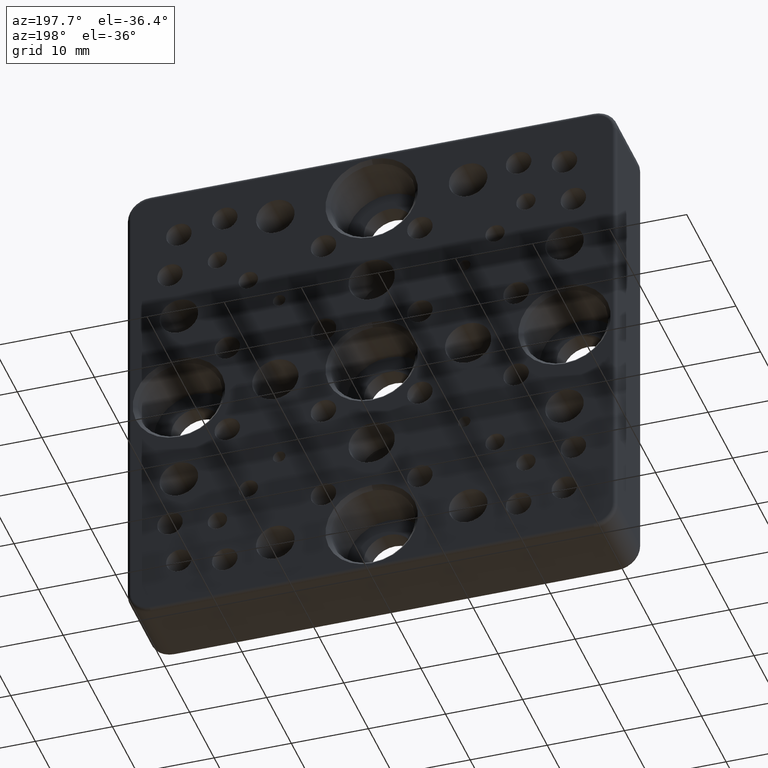
[diagram: clean part render]
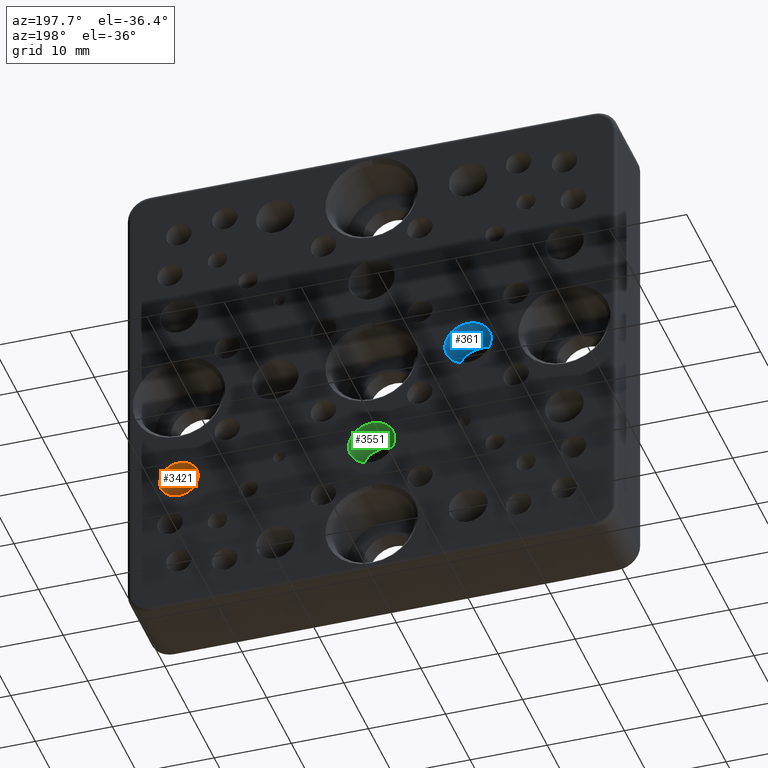
[diagram: same view with three faces highlighted in distinct colors, each labeled with its STEP entity id]
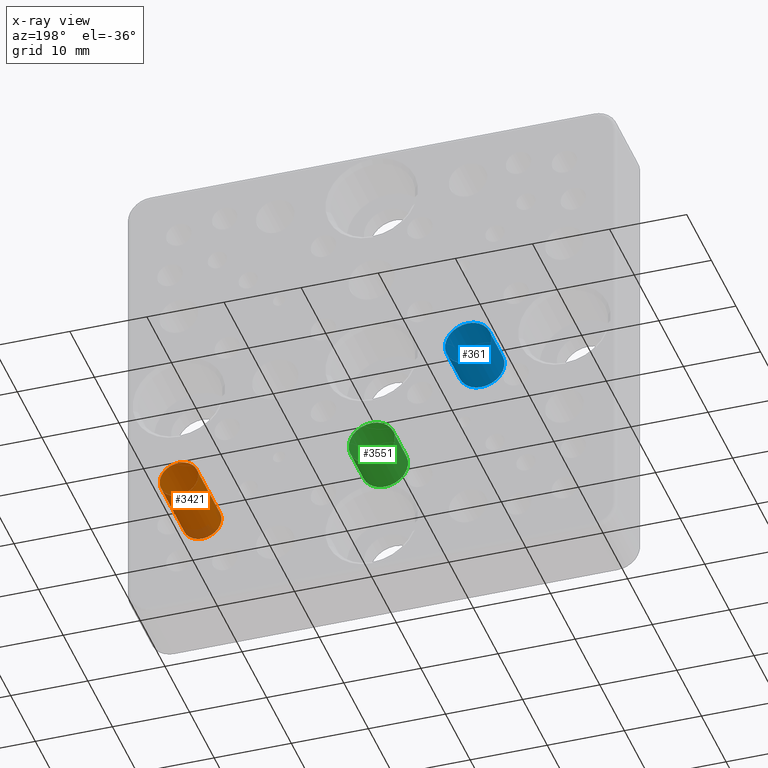
[diagram: x-ray of the same camera — body ghosted, the three highlighted faces saturated]
A machine part, auxiliary view with three faces highlighted in distinct colors.
The next image is the same camera in x-ray (body ghosted, the three faces saturated) — at least one of them is partly hidden behind the body in this view.
Their STEP definitions:

[orange] entity #3421 — the highlighted cylindrical surface (bore or boss wall) has radius 2.5 mm, axis along (-0, -1, -0).
#197 = CYLINDRICAL_SURFACE ( 'NONE', #1111, 2.499999999999998668 ) ;
#205 = CARTESIAN_POINT ( 'NONE',  ( 24.99999999999999645, 0.5250000000000006883, -12.50000000000000000 ) ) ;
#247 = VERTEX_POINT ( 'NONE', #1483 ) ;
#461 = CARTESIAN_POINT ( 'NONE',  ( 24.99999999999999645, 0.000000000000000000, -12.50000000000000000 ) ) ;
#566 = VERTEX_POINT ( 'NONE', #846 ) ;
#588 = EDGE_CURVE ( 'NONE', #566, #566, #3853, .T. ) ;
#791 = EDGE_CURVE ( 'NONE', #247, #247, #2650, .T. ) ;
#846 = CARTESIAN_POINT ( 'NONE',  ( 24.99999999999999645, 0.5250000000000006883, -15.00000000000000000 ) ) ;
#986 = DIRECTION ( 'NONE',  ( 0.000000000000000000, 0.000000000000000000, -1.000000000000000000 ) ) ;
#1111 = AXIS2_PLACEMENT_3D ( 'NONE', #461, #1669, #3256 ) ;
#1296 = ORIENTED_EDGE ( 'NONE', *, *, #791, .F. ) ;
#1389 = EDGE_LOOP ( 'NONE', ( #1296 ) ) ;
#1483 = CARTESIAN_POINT ( 'NONE',  ( 24.99999999999999645, 10.00000000000000178, -15.00000000000000000 ) ) ;
#1669 = DIRECTION ( 'NONE',  ( -0.000000000000000000, -1.000000000000000000, -0.000000000000000000 ) ) ;
#2144 = AXIS2_PLACEMENT_3D ( 'NONE', #205, #2686, #2376 ) ;
#2251 = AXIS2_PLACEMENT_3D ( 'NONE', #3548, #3784, #986 ) ;
#2376 = DIRECTION ( 'NONE',  ( 0.000000000000000000, 0.000000000000000000, -1.000000000000000000 ) ) ;
#2549 = ORIENTED_EDGE ( 'NONE', *, *, #588, .T. ) ;
#2614 = FACE_OUTER_BOUND ( 'NONE', #3712, .T. ) ;
#2650 = CIRCLE ( 'NONE', #2251, 2.499999999999998668 ) ;
#2686 = DIRECTION ( 'NONE',  ( -0.000000000000000000, -1.000000000000000000, -0.000000000000000000 ) ) ;
#3009 = FACE_OUTER_BOUND ( 'NONE', #1389, .T. ) ;
#3256 = DIRECTION ( 'NONE',  ( 0.000000000000000000, 0.000000000000000000, -1.000000000000000000 ) ) ;
#3421 = ADVANCED_FACE ( 'NONE', ( #3009, #2614 ), #197, .F. ) ;
#3548 = CARTESIAN_POINT ( 'NONE',  ( 24.99999999999999645, 10.00000000000000178, -12.50000000000000000 ) ) ;
#3712 = EDGE_LOOP ( 'NONE', ( #2549 ) ) ;
#3784 = DIRECTION ( 'NONE',  ( -0.000000000000000000, -1.000000000000000000, -0.000000000000000000 ) ) ;
#3853 = CIRCLE ( 'NONE', #2144, 2.499999999999998668 ) ;

[blue] entity #361 — the highlighted cylindrical surface (bore or boss wall) has radius 3 mm, axis along (-0, -1, -0).
#101 = EDGE_CURVE ( 'NONE', #2031, #2031, #331, .T. ) ;
#331 = CIRCLE ( 'NONE', #2605, 3.000000000000012879 ) ;
#361 = ADVANCED_FACE ( 'NONE', ( #3554, #2604 ), #3165, .F. ) ;
#803 = ORIENTED_EDGE ( 'NONE', *, *, #101, .T. ) ;
#841 = CARTESIAN_POINT ( 'NONE',  ( -12.50000000000000000, 10.00000000000000000, -3.000000000000012879 ) ) ;
#845 = DIRECTION ( 'NONE',  ( -0.000000000000000000, -1.000000000000000000, -0.000000000000000000 ) ) ;
#850 = AXIS2_PLACEMENT_3D ( 'NONE', #2396, #845, #2083 ) ;
#969 = DIRECTION ( 'NONE',  ( 0.000000000000000000, 0.000000000000000000, -1.000000000000000000 ) ) ;
#1446 = VERTEX_POINT ( 'NONE', #841 ) ;
#1537 = DIRECTION ( 'NONE',  ( -0.000000000000000000, -1.000000000000000000, -0.000000000000000000 ) ) ;
#1849 = CARTESIAN_POINT ( 'NONE',  ( -12.50000000000000000, 4.599999999999999645, 0.000000000000000000 ) ) ;
#1888 = DIRECTION ( 'NONE',  ( 0.000000000000000000, 0.000000000000000000, -1.000000000000000000 ) ) ;
#1962 = EDGE_LOOP ( 'NONE', ( #2092 ) ) ;
#2031 = VERTEX_POINT ( 'NONE', #2338 ) ;
#2083 = DIRECTION ( 'NONE',  ( 0.000000000000000000, 0.000000000000000000, -1.000000000000000000 ) ) ;
#2092 = ORIENTED_EDGE ( 'NONE', *, *, #2711, .F. ) ;
#2338 = CARTESIAN_POINT ( 'NONE',  ( -12.50000000000000000, 4.599999999999999645, -3.000000000000012879 ) ) ;
#2396 = CARTESIAN_POINT ( 'NONE',  ( -12.50000000000000000, 10.00000000000000000, 0.000000000000000000 ) ) ;
#2604 = FACE_OUTER_BOUND ( 'NONE', #3585, .T. ) ;
#2605 = AXIS2_PLACEMENT_3D ( 'NONE', #1849, #1537, #1888 ) ;
#2711 = EDGE_CURVE ( 'NONE', #1446, #1446, #3331, .T. ) ;
#3165 = CYLINDRICAL_SURFACE ( 'NONE', #3557, 3.000000000000012879 ) ;
#3331 = CIRCLE ( 'NONE', #850, 3.000000000000012879 ) ;
#3466 = DIRECTION ( 'NONE',  ( -0.000000000000000000, -1.000000000000000000, -0.000000000000000000 ) ) ;
#3554 = FACE_OUTER_BOUND ( 'NONE', #1962, .T. ) ;
#3557 = AXIS2_PLACEMENT_3D ( 'NONE', #3855, #3466, #969 ) ;
#3585 = EDGE_LOOP ( 'NONE', ( #803 ) ) ;
#3855 = CARTESIAN_POINT ( 'NONE',  ( -12.50000000000000000, 0.000000000000000000, 0.000000000000000000 ) ) ;

[green] entity #3551 — the highlighted cylindrical surface (bore or boss wall) has radius 3 mm, axis along (-0, -1, -0).
#76 = EDGE_CURVE ( 'NONE', #3898, #3898, #139, .T. ) ;
#139 = CIRCLE ( 'NONE', #2013, 3.000000000000012879 ) ;
#434 = ORIENTED_EDGE ( 'NONE', *, *, #996, .F. ) ;
#500 = FACE_OUTER_BOUND ( 'NONE', #3127, .T. ) ;
#606 = DIRECTION ( 'NONE',  ( 0.000000000000000000, 0.000000000000000000, -1.000000000000000000 ) ) ;
#870 = ORIENTED_EDGE ( 'NONE', *, *, #76, .T. ) ;
#996 = EDGE_CURVE ( 'NONE', #1312, #1312, #2721, .T. ) ;
#1088 = CARTESIAN_POINT ( 'NONE',  ( 3.469446951953614189E-15, 4.599999999999999645, -15.50000000000001421 ) ) ;
#1312 = VERTEX_POINT ( 'NONE', #2476 ) ;
#1417 = CARTESIAN_POINT ( 'NONE',  ( 3.469446951953614189E-15, 0.000000000000000000, -12.50000000000000000 ) ) ;
#1498 = CARTESIAN_POINT ( 'NONE',  ( 3.469446951953614189E-15, 4.599999999999999645, -12.50000000000000000 ) ) ;
#1560 = DIRECTION ( 'NONE',  ( -0.000000000000000000, -1.000000000000000000, -0.000000000000000000 ) ) ;
#1729 = CYLINDRICAL_SURFACE ( 'NONE', #3218, 3.000000000000012879 ) ;
#2013 = AXIS2_PLACEMENT_3D ( 'NONE', #1498, #1560, #4018 ) ;
#2124 = AXIS2_PLACEMENT_3D ( 'NONE', #3970, #3041, #606 ) ;
#2476 = CARTESIAN_POINT ( 'NONE',  ( 3.469446951953614189E-15, 10.00000000000000000, -15.50000000000001421 ) ) ;
#2721 = CIRCLE ( 'NONE', #2124, 3.000000000000012879 ) ;
#3041 = DIRECTION ( 'NONE',  ( -0.000000000000000000, -1.000000000000000000, -0.000000000000000000 ) ) ;
#3127 = EDGE_LOOP ( 'NONE', ( #870 ) ) ;
#3218 = AXIS2_PLACEMENT_3D ( 'NONE', #1417, #3921, #4016 ) ;
#3296 = FACE_OUTER_BOUND ( 'NONE', #3397, .T. ) ;
#3397 = EDGE_LOOP ( 'NONE', ( #434 ) ) ;
#3551 = ADVANCED_FACE ( 'NONE', ( #3296, #500 ), #1729, .F. ) ;
#3898 = VERTEX_POINT ( 'NONE', #1088 ) ;
#3921 = DIRECTION ( 'NONE',  ( -0.000000000000000000, -1.000000000000000000, -0.000000000000000000 ) ) ;
#3970 = CARTESIAN_POINT ( 'NONE',  ( 3.469446951953614189E-15, 10.00000000000000000, -12.50000000000000000 ) ) ;
#4016 = DIRECTION ( 'NONE',  ( 0.000000000000000000, 0.000000000000000000, -1.000000000000000000 ) ) ;
#4018 = DIRECTION ( 'NONE',  ( 0.000000000000000000, 0.000000000000000000, -1.000000000000000000 ) ) ;